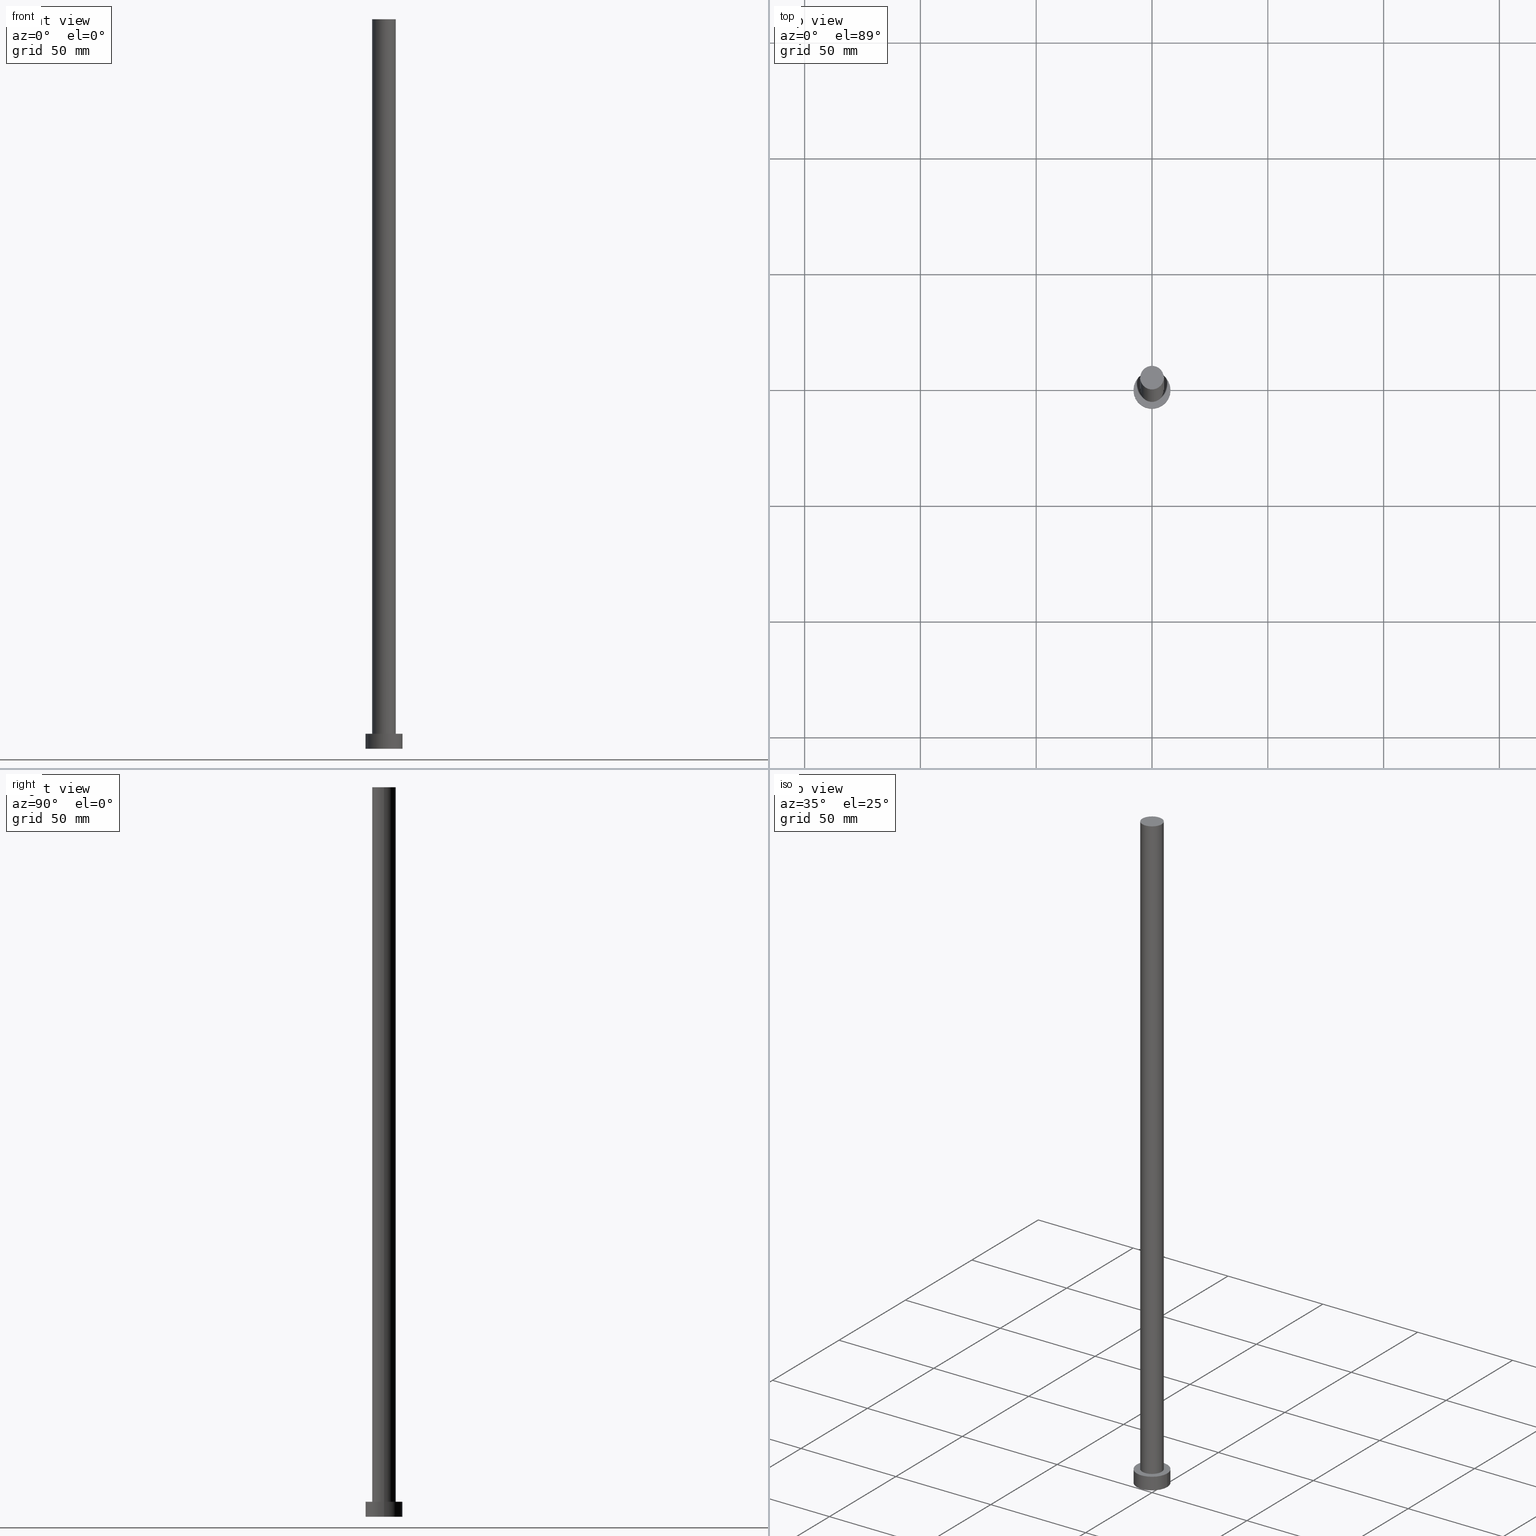
[diagram: canonical four-view strip — front | top / right | iso, engineering-drawing reading convention]
A machine part, canonical four-view strip (front | top / right | iso — engineering-drawing reading convention). The complete STEP part file that produces these views, byte-faithful:
ISO-10303-21;
HEADER;
FILE_DESCRIPTION (( 'STEP AP203' ),
    '1' );
FILE_NAME ('1d34.STEP',
    '2023-02-13T13:06:24',
    ( '' ),
    ( '' ),
    'SwSTEP 2.0',
    'SolidWorks 2019',
    '' );
FILE_SCHEMA (( 'CONFIG_CONTROL_DESIGN' ));
ENDSEC;

DATA;
#1 = EDGE_CURVE ( 'NONE', #63, #212, #165, .T. ) ;
#2 = DIRECTION ( 'NONE',  ( 1.000000000000000000, 0.000000000000000000, 0.000000000000000000 ) ) ;
#3 = AXIS2_PLACEMENT_3D ( 'NONE', #133, #115, #36 ) ;
#4 = APPROVAL_PERSON_ORGANIZATION ( #56, #44, #108 ) ;
#5 = FACE_OUTER_BOUND ( 'NONE', #154, .T. ) ;
#6 =( LENGTH_UNIT ( ) NAMED_UNIT ( * ) SI_UNIT ( .MILLI., .METRE. ) );
#7 =( NAMED_UNIT ( * ) SI_UNIT ( $, .STERADIAN. ) SOLID_ANGLE_UNIT ( ) );
#8 = AXIS2_PLACEMENT_3D ( 'NONE', #11, #74, #71 ) ;
#9 = CARTESIAN_POINT ( 'NONE',  ( -5.100000000000001421, 0.000000000000000000, 6.500000000000000000 ) ) ;
#10 = CALENDAR_DATE ( 2023, 13, 2 ) ;
#11 = CARTESIAN_POINT ( 'NONE',  ( 0.000000000000000000, 0.000000000000000000, 0.000000000000000000 ) ) ;
#12 = AXIS2_PLACEMENT_3D ( 'NONE', #24, #142, #155 ) ;
#13 = CIRCLE ( 'NONE', #110, 8.000000000000000000 ) ;
#14 = ADVANCED_FACE ( 'NONE', ( #151 ), #174, .T. ) ;
#15 = FACE_OUTER_BOUND ( 'NONE', #77, .T. ) ;
#16 = VERTEX_POINT ( 'NONE', #191 ) ;
#17 = ORIENTED_EDGE ( 'NONE', *, *, #240, .F. ) ;
#18 = CYLINDRICAL_SURFACE ( 'NONE', #67, 8.000000000000000000 ) ;
#19 = EDGE_CURVE ( 'NONE', #16, #63, #76, .T. ) ;
#20 = DIRECTION ( 'NONE',  ( -0.000000000000000000, -0.000000000000000000, -1.000000000000000000 ) ) ;
#21 = FACE_OUTER_BOUND ( 'NONE', #129, .T. ) ;
#22 = PRODUCT_DEFINITION_FORMATION_WITH_SPECIFIED_SOURCE ( 'LIBOVOLN�', '', #225, .NOT_KNOWN. ) ;
#23 = DIRECTION ( 'NONE',  ( 1.000000000000000000, 0.000000000000000000, -0.000000000000000000 ) ) ;
#24 = CARTESIAN_POINT ( 'NONE',  ( 0.000000000000000000, 0.000000000000000000, 315.0000000000000000 ) ) ;
#25 = PLANE ( 'NONE',  #202 ) ;
#26 = APPROVAL_STATUS ( 'not_yet_approved' ) ;
#27 = PRODUCT_DEFINITION_SHAPE ( 'NONE', 'NONE',  #148 ) ;
#28 = PERSON_AND_ORGANIZATION ( #83, #235 ) ;
#29 = APPROVAL_DATE_TIME ( #69, #193 ) ;
#30 = LOCAL_TIME ( 14, 6, 24.00000000000000000, #51 ) ;
#31 = ORIENTED_EDGE ( 'NONE', *, *, #197, .F. ) ;
#32 = PERSON_AND_ORGANIZATION ( #83, #235 ) ;
#33 = EDGE_LOOP ( 'NONE', ( #252, #167 ) ) ;
#34 = ORIENTED_EDGE ( 'NONE', *, *, #132, .F. ) ;
#35 = SECURITY_CLASSIFICATION ( '', '', #106 ) ;
#36 = DIRECTION ( 'NONE',  ( 1.000000000000000000, 0.000000000000000000, -0.000000000000000000 ) ) ;
#37 = ORIENTED_EDGE ( 'NONE', *, *, #1, .T. ) ;
#38 = ORIENTED_EDGE ( 'NONE', *, *, #168, .F. ) ;
#39 = CC_DESIGN_PERSON_AND_ORGANIZATION_ASSIGNMENT ( #104, #164, ( #22 ) ) ;
#40 = AXIS2_PLACEMENT_3D ( 'NONE', #46, #236, #178 ) ;
#41 = ORIENTED_EDGE ( 'NONE', *, *, #226, .T. ) ;
#42 = APPLICATION_CONTEXT ( 'configuration controlled 3d designs of mechanical parts and assemblies' ) ;
#43 = DIRECTION ( 'NONE',  ( 0.000000000000000000, 0.000000000000000000, 1.000000000000000000 ) ) ;
#44 = APPROVAL ( #87, 'NEUR�EN�' ) ;
#45 = DIRECTION ( 'NONE',  ( 1.000000000000000000, 0.000000000000000000, 0.000000000000000000 ) ) ;
#46 = CARTESIAN_POINT ( 'NONE',  ( 0.000000000000000000, 0.000000000000000000, 6.500000000000000000 ) ) ;
#47 = MANIFOLD_SOLID_BREP ( 'P�idat vysunut�m3', #222 ) ;
#48 = CARTESIAN_POINT ( 'NONE',  ( 0.000000000000000000, 0.000000000000000000, 315.0000000000000000 ) ) ;
#49 = CYLINDRICAL_SURFACE ( 'NONE', #12, 5.100000000000001421 ) ;
#50 = EDGE_CURVE ( 'NONE', #114, #135, #170, .T. ) ;
#51 = COORDINATED_UNIVERSAL_TIME_OFFSET ( 1, 0, .AHEAD. ) ;
#52 = APPLICATION_CONTEXT ( 'configuration controlled 3d designs of mechanical parts and assemblies' ) ;
#53 = CC_DESIGN_DATE_AND_TIME_ASSIGNMENT ( #223, #203, ( #148 ) ) ;
#54 = APPROVAL_STATUS ( 'not_yet_approved' ) ;
#55 = ORIENTED_EDGE ( 'NONE', *, *, #177, .T. ) ;
#56 = PERSON_AND_ORGANIZATION ( #83, #235 ) ;
#57 = ORIENTED_EDGE ( 'NONE', *, *, #1, .F. ) ;
#58 = EDGE_CURVE ( 'NONE', #114, #113, #62, .T. ) ;
#59 = CARTESIAN_POINT ( 'NONE',  ( 8.000000000000000000, 9.797174393178823685E-16, 0.000000000000000000 ) ) ;
#60 = DIRECTION ( 'NONE',  ( -1.000000000000000000, 0.000000000000000000, 0.000000000000000000 ) ) ;
#61 = ADVANCED_FACE ( 'NONE', ( #172 ), #111, .F. ) ;
#62 = LINE ( 'NONE', #130, #208 ) ;
#63 = VERTEX_POINT ( 'NONE', #59 ) ;
#64 = CARTESIAN_POINT ( 'NONE',  ( -5.100000000000001421, 0.000000000000000000, 315.0000000000000000 ) ) ;
#65 = CC_DESIGN_PERSON_AND_ORGANIZATION_ASSIGNMENT ( #89, #144, ( #22 ) ) ;
#66 = CYLINDRICAL_SURFACE ( 'NONE', #161, 5.100000000000001421 ) ;
#67 = AXIS2_PLACEMENT_3D ( 'NONE', #98, #232, #60 ) ;
#68 = DIRECTION ( 'NONE',  ( 1.000000000000000000, 0.000000000000000000, 0.000000000000000000 ) ) ;
#69 = DATE_AND_TIME ( #10, #70 ) ;
#70 = LOCAL_TIME ( 14, 6, 24.00000000000000000, #209 ) ;
#71 = DIRECTION ( 'NONE',  ( 1.000000000000000000, 0.000000000000000000, 0.000000000000000000 ) ) ;
#72 = CALENDAR_DATE ( 2023, 13, 2 ) ;
#73 = APPROVAL_DATE_TIME ( #205, #163 ) ;
#74 = DIRECTION ( 'NONE',  ( 0.000000000000000000, 0.000000000000000000, 1.000000000000000000 ) ) ;
#75 = AXIS2_PLACEMENT_3D ( 'NONE', #157, #43, #118 ) ;
#76 = LINE ( 'NONE', #195, #249 ) ;
#77 = EDGE_LOOP ( 'NONE', ( #17, #214, #37, #34 ) ) ;
#78 = EDGE_LOOP ( 'NONE', ( #216, #31 ) ) ;
#79 = CIRCLE ( 'NONE', #40, 5.100000000000001421 ) ;
#80 = ORIENTED_EDGE ( 'NONE', *, *, #58, .T. ) ;
#81 = FACE_OUTER_BOUND ( 'NONE', #33, .T. ) ;
#82 = CARTESIAN_POINT ( 'NONE',  ( 0.000000000000000000, 0.000000000000000000, 315.0000000000000000 ) ) ;
#83 = PERSON ( 'NEUR�EN�', 'NEUR�EN�', 'NEUR�EN�', ('NEUR�EN�'), ('NEUR�EN�'), ('NEUR�EN�') ) ;
#84 = DIRECTION ( 'NONE',  ( 1.000000000000000000, 0.000000000000000000, 0.000000000000000000 ) ) ;
#85 = CARTESIAN_POINT ( 'NONE',  ( -5.100000000000001421, 0.000000000000000000, 315.0000000000000000 ) ) ;
#86 = CARTESIAN_POINT ( 'NONE',  ( -8.000000000000000000, 0.000000000000000000, 6.500000000000000000 ) ) ;
#87 = APPROVAL_STATUS ( 'not_yet_approved' ) ;
#88 = CALENDAR_DATE ( 2023, 13, 2 ) ;
#89 = PERSON_AND_ORGANIZATION ( #83, #235 ) ;
#90 = VECTOR ( 'NONE', #198, 1000.000000000000000 ) ;
#91 = DIRECTION ( 'NONE',  ( 1.000000000000000000, 0.000000000000000000, -0.000000000000000000 ) ) ;
#92 = DIRECTION ( 'NONE',  ( 1.000000000000000000, 0.000000000000000000, 0.000000000000000000 ) ) ;
#93 = EDGE_LOOP ( 'NONE', ( #234, #57 ) ) ;
#94 = CC_DESIGN_PERSON_AND_ORGANIZATION_ASSIGNMENT ( #32, #183, ( #148 ) ) ;
#95 = UNCERTAINTY_MEASURE_WITH_UNIT (LENGTH_MEASURE( 1.000000000000000082E-05 ), #6, 'distance_accuracy_value', 'NONE');
#96 = ORIENTED_EDGE ( 'NONE', *, *, #206, .F. ) ;
#97 = CC_DESIGN_SECURITY_CLASSIFICATION ( #35, ( #22 ) ) ;
#98 = CARTESIAN_POINT ( 'NONE',  ( 0.000000000000000000, 0.000000000000000000, 6.500000000000000000 ) ) ;
#99 = CARTESIAN_POINT ( 'NONE',  ( -8.000000000000000000, 0.000000000000000000, 0.000000000000000000 ) ) ;
#100 = AXIS2_PLACEMENT_3D ( 'NONE', #255, #233, #92 ) ;
#101 = ADVANCED_FACE ( 'NONE', ( #15 ), #18, .T. ) ;
#102 = DIRECTION ( 'NONE',  ( -1.000000000000000000, 0.000000000000000000, 0.000000000000000000 ) ) ;
#103 = DIRECTION ( 'NONE',  ( -1.000000000000000000, 0.000000000000000000, 0.000000000000000000 ) ) ;
#104 = PERSON_AND_ORGANIZATION ( #83, #235 ) ;
#105 = CC_DESIGN_PERSON_AND_ORGANIZATION_ASSIGNMENT ( #159, #127, ( #225 ) ) ;
#106 = SECURITY_CLASSIFICATION_LEVEL ( 'unclassified' ) ;
#107 = PERSON_AND_ORGANIZATION_ROLE ( 'classification_officer' ) ;
#108 = APPROVAL_ROLE ( '' ) ;
#109 = ORIENTED_EDGE ( 'NONE', *, *, #168, .T. ) ;
#110 = AXIS2_PLACEMENT_3D ( 'NONE', #156, #238, #45 ) ;
#111 = PLANE ( 'NONE',  #136 ) ;
#112 = ADVANCED_FACE ( 'NONE', ( #134, #81 ), #25, .T. ) ;
#113 = VERTEX_POINT ( 'NONE', #158 ) ;
#114 = VERTEX_POINT ( 'NONE', #218 ) ;
#115 = DIRECTION ( 'NONE',  ( 0.000000000000000000, 0.000000000000000000, 1.000000000000000000 ) ) ;
#116 =( GEOMETRIC_REPRESENTATION_CONTEXT ( 3 ) GLOBAL_UNCERTAINTY_ASSIGNED_CONTEXT ( ( #95 ) ) GLOBAL_UNIT_ASSIGNED_CONTEXT ( ( #6, #122, #7 ) ) REPRESENTATION_CONTEXT ( 'NONE', 'WORKASPACE' ) );
#117 = ORIENTED_EDGE ( 'NONE', *, *, #197, .T. ) ;
#118 = DIRECTION ( 'NONE',  ( 1.000000000000000000, 0.000000000000000000, 0.000000000000000000 ) ) ;
#119 = LINE ( 'NONE', #86, #90 ) ;
#120 = DIRECTION ( 'NONE',  ( 0.000000000000000000, 0.000000000000000000, 1.000000000000000000 ) ) ;
#121 = CC_DESIGN_DATE_AND_TIME_ASSIGNMENT ( #125, #162, ( #35 ) ) ;
#122 =( NAMED_UNIT ( * ) PLANE_ANGLE_UNIT ( ) SI_UNIT ( $, .RADIAN. ) );
#123 = LINE ( 'NONE', #64, #145 ) ;
#124 = CC_DESIGN_APPROVAL ( #44, ( #148 ) ) ;
#125 = DATE_AND_TIME ( #88, #30 ) ;
#126 = CALENDAR_DATE ( 2023, 13, 2 ) ;
#127 = PERSON_AND_ORGANIZATION_ROLE ( 'design_owner' ) ;
#128 = AXIS2_PLACEMENT_3D ( 'NONE', #229, #196, #190 ) ;
#129 = EDGE_LOOP ( 'NONE', ( #186, #80, #117, #96 ) ) ;
#130 = CARTESIAN_POINT ( 'NONE',  ( 5.100000000000001421, 6.245698675651501825E-16, 315.0000000000000000 ) ) ;
#131 = AXIS2_PLACEMENT_3D ( 'NONE', #242, #138, #2 ) ;
#132 = EDGE_CURVE ( 'NONE', #215, #212, #119, .T. ) ;
#133 = CARTESIAN_POINT ( 'NONE',  ( 0.000000000000000000, 0.000000000000000000, 315.0000000000000000 ) ) ;
#134 = FACE_BOUND ( 'NONE', #78, .T. ) ;
#135 = VERTEX_POINT ( 'NONE', #85 ) ;
#136 = AXIS2_PLACEMENT_3D ( 'NONE', #254, #217, #91 ) ;
#137 = ORIENTED_EDGE ( 'NONE', *, *, #19, .F. ) ;
#138 = DIRECTION ( 'NONE',  ( 0.000000000000000000, 0.000000000000000000, 1.000000000000000000 ) ) ;
#139 = CYLINDRICAL_SURFACE ( 'NONE', #188, 8.000000000000000000 ) ;
#140 = DIRECTION ( 'NONE',  ( 0.000000000000000000, 0.000000000000000000, 1.000000000000000000 ) ) ;
#141 = LOCAL_TIME ( 14, 6, 24.00000000000000000, #160 ) ;
#142 = DIRECTION ( 'NONE',  ( -0.000000000000000000, -0.000000000000000000, -1.000000000000000000 ) ) ;
#143 = CIRCLE ( 'NONE', #187, 5.100000000000001421 ) ;
#144 = PERSON_AND_ORGANIZATION_ROLE ( 'creator' ) ;
#145 = VECTOR ( 'NONE', #20, 1000.000000000000000 ) ;
#146 = APPROVAL_DATE_TIME ( #246, #44 ) ;
#147 = COORDINATED_UNIVERSAL_TIME_OFFSET ( 1, 0, .AHEAD. ) ;
#148 = PRODUCT_DEFINITION ( 'NEZN�M�', '', #22, #184 ) ;
#149 = DIRECTION ( 'NONE',  ( -0.000000000000000000, -0.000000000000000000, -1.000000000000000000 ) ) ;
#150 = ADVANCED_FACE ( 'NONE', ( #21 ), #49, .T. ) ;
#151 = FACE_OUTER_BOUND ( 'NONE', #152, .T. ) ;
#152 = EDGE_LOOP ( 'NONE', ( #109, #153 ) ) ;
#153 = ORIENTED_EDGE ( 'NONE', *, *, #50, .T. ) ;
#154 = EDGE_LOOP ( 'NONE', ( #137, #192, #251, #55 ) ) ;
#155 = DIRECTION ( 'NONE',  ( -1.000000000000000000, 0.000000000000000000, 0.000000000000000000 ) ) ;
#156 = CARTESIAN_POINT ( 'NONE',  ( 0.000000000000000000, 0.000000000000000000, 6.500000000000000000 ) ) ;
#157 = CARTESIAN_POINT ( 'NONE',  ( 0.000000000000000000, 0.000000000000000000, 6.500000000000000000 ) ) ;
#158 = CARTESIAN_POINT ( 'NONE',  ( 5.100000000000001421, 6.245698675651501825E-16, 6.500000000000000000 ) ) ;
#159 = PERSON_AND_ORGANIZATION ( #83, #235 ) ;
#160 = COORDINATED_UNIVERSAL_TIME_OFFSET ( 1, 0, .AHEAD. ) ;
#161 = AXIS2_PLACEMENT_3D ( 'NONE', #48, #219, #103 ) ;
#162 = DATE_TIME_ROLE ( 'classification_date' ) ;
#163 = APPROVAL ( #26, 'NEUR�EN�' ) ;
#164 = PERSON_AND_ORGANIZATION_ROLE ( 'design_supplier' ) ;
#165 = CIRCLE ( 'NONE', #100, 8.000000000000000000 ) ;
#166 = VERTEX_POINT ( 'NONE', #9 ) ;
#167 = ORIENTED_EDGE ( 'NONE', *, *, #240, .T. ) ;
#168 = EDGE_CURVE ( 'NONE', #135, #114, #143, .T. ) ;
#169 = EDGE_LOOP ( 'NONE', ( #230, #38, #213, #41 ) ) ;
#170 = CIRCLE ( 'NONE', #128, 5.100000000000001421 ) ;
#171 = CC_DESIGN_APPROVAL ( #193, ( #35 ) ) ;
#172 = FACE_OUTER_BOUND ( 'NONE', #93, .T. ) ;
#173 = PRODUCT_RELATED_PRODUCT_CATEGORY ( 'detail', '', ( #225 ) ) ;
#174 = PLANE ( 'NONE',  #3 ) ;
#175 = CARTESIAN_POINT ( 'NONE',  ( -8.000000000000000000, 0.000000000000000000, 6.500000000000000000 ) ) ;
#176 = DIRECTION ( 'NONE',  ( 0.000000000000000000, 0.000000000000000000, 1.000000000000000000 ) ) ;
#177 = EDGE_CURVE ( 'NONE', #212, #63, #245, .T. ) ;
#178 = DIRECTION ( 'NONE',  ( 1.000000000000000000, 0.000000000000000000, 0.000000000000000000 ) ) ;
#179 = ADVANCED_FACE ( 'NONE', ( #220 ), #66, .T. ) ;
#180 = PERSON_AND_ORGANIZATION ( #83, #235 ) ;
#181 = MECHANICAL_CONTEXT ( 'NONE', #42, 'mechanical' ) ;
#182 = ADVANCED_BREP_SHAPE_REPRESENTATION ( '1d34', ( #47, #8 ), #116 ) ;
#183 = PERSON_AND_ORGANIZATION_ROLE ( 'creator' ) ;
#184 = DESIGN_CONTEXT ( 'detailed design', #52, 'design' ) ;
#185 = APPROVAL_PERSON_ORGANIZATION ( #180, #193, #250 ) ;
#186 = ORIENTED_EDGE ( 'NONE', *, *, #50, .F. ) ;
#187 = AXIS2_PLACEMENT_3D ( 'NONE', #82, #140, #68 ) ;
#188 = AXIS2_PLACEMENT_3D ( 'NONE', #199, #200, #102 ) ;
#189 = ADVANCED_FACE ( 'NONE', ( #5 ), #139, .T. ) ;
#190 = DIRECTION ( 'NONE',  ( 1.000000000000000000, 0.000000000000000000, 0.000000000000000000 ) ) ;
#191 = CARTESIAN_POINT ( 'NONE',  ( 8.000000000000000000, 9.797174393178823685E-16, 6.500000000000000000 ) ) ;
#192 = ORIENTED_EDGE ( 'NONE', *, *, #244, .F. ) ;
#193 = APPROVAL ( #54, 'NEUR�EN�' ) ;
#194 = CC_DESIGN_APPROVAL ( #163, ( #22 ) ) ;
#195 = CARTESIAN_POINT ( 'NONE',  ( 8.000000000000000000, 9.797174393178823685E-16, 6.500000000000000000 ) ) ;
#196 = DIRECTION ( 'NONE',  ( 0.000000000000000000, 0.000000000000000000, 1.000000000000000000 ) ) ;
#197 = EDGE_CURVE ( 'NONE', #113, #166, #79, .T. ) ;
#198 = DIRECTION ( 'NONE',  ( -0.000000000000000000, -0.000000000000000000, -1.000000000000000000 ) ) ;
#199 = CARTESIAN_POINT ( 'NONE',  ( 0.000000000000000000, 0.000000000000000000, 6.500000000000000000 ) ) ;
#200 = DIRECTION ( 'NONE',  ( -0.000000000000000000, -0.000000000000000000, -1.000000000000000000 ) ) ;
#201 = APPLICATION_PROTOCOL_DEFINITION ( 'international standard', 'config_control_design', 1994, #42 ) ;
#202 = AXIS2_PLACEMENT_3D ( 'NONE', #221, #120, #23 ) ;
#203 = DATE_TIME_ROLE ( 'creation_date' ) ;
#204 = CIRCLE ( 'NONE', #75, 5.100000000000001421 ) ;
#205 = DATE_AND_TIME ( #72, #231 ) ;
#206 = EDGE_CURVE ( 'NONE', #135, #166, #123, .T. ) ;
#207 = APPROVAL_ROLE ( '' ) ;
#208 = VECTOR ( 'NONE', #253, 1000.000000000000000 ) ;
#209 = COORDINATED_UNIVERSAL_TIME_OFFSET ( 1, 0, .AHEAD. ) ;
#210 = APPROVAL_PERSON_ORGANIZATION ( #228, #163, #207 ) ;
#211 = CALENDAR_DATE ( 2023, 13, 2 ) ;
#212 = VERTEX_POINT ( 'NONE', #99 ) ;
#213 = ORIENTED_EDGE ( 'NONE', *, *, #206, .T. ) ;
#214 = ORIENTED_EDGE ( 'NONE', *, *, #19, .T. ) ;
#215 = VERTEX_POINT ( 'NONE', #175 ) ;
#216 = ORIENTED_EDGE ( 'NONE', *, *, #226, .F. ) ;
#217 = DIRECTION ( 'NONE',  ( 0.000000000000000000, 0.000000000000000000, 1.000000000000000000 ) ) ;
#218 = CARTESIAN_POINT ( 'NONE',  ( 5.100000000000001421, 6.245698675651501825E-16, 315.0000000000000000 ) ) ;
#219 = DIRECTION ( 'NONE',  ( -0.000000000000000000, -0.000000000000000000, -1.000000000000000000 ) ) ;
#220 = FACE_OUTER_BOUND ( 'NONE', #169, .T. ) ;
#221 = CARTESIAN_POINT ( 'NONE',  ( 0.000000000000000000, 0.000000000000000000, 6.500000000000000000 ) ) ;
#222 = CLOSED_SHELL ( 'NONE', ( #150, #101, #189, #112, #61, #179, #14 ) ) ;
#223 = DATE_AND_TIME ( #211, #241 ) ;
#224 = AXIS2_PLACEMENT_3D ( 'NONE', #239, #176, #84 ) ;
#225 = PRODUCT ( '1d34', '1d34', '', ( #181 ) ) ;
#226 = EDGE_CURVE ( 'NONE', #166, #113, #204, .T. ) ;
#227 = COORDINATED_UNIVERSAL_TIME_OFFSET ( 1, 0, .AHEAD. ) ;
#228 = PERSON_AND_ORGANIZATION ( #83, #235 ) ;
#229 = CARTESIAN_POINT ( 'NONE',  ( 0.000000000000000000, 0.000000000000000000, 315.0000000000000000 ) ) ;
#230 = ORIENTED_EDGE ( 'NONE', *, *, #58, .F. ) ;
#231 = LOCAL_TIME ( 14, 6, 24.00000000000000000, #147 ) ;
#232 = DIRECTION ( 'NONE',  ( -0.000000000000000000, -0.000000000000000000, -1.000000000000000000 ) ) ;
#233 = DIRECTION ( 'NONE',  ( 0.000000000000000000, 0.000000000000000000, 1.000000000000000000 ) ) ;
#234 = ORIENTED_EDGE ( 'NONE', *, *, #177, .F. ) ;
#235 = ORGANIZATION ( 'NEUR�EN�', 'NEUR�EN�', '' ) ;
#236 = DIRECTION ( 'NONE',  ( 0.000000000000000000, 0.000000000000000000, 1.000000000000000000 ) ) ;
#237 = CC_DESIGN_PERSON_AND_ORGANIZATION_ASSIGNMENT ( #28, #107, ( #35 ) ) ;
#238 = DIRECTION ( 'NONE',  ( 0.000000000000000000, 0.000000000000000000, 1.000000000000000000 ) ) ;
#239 = CARTESIAN_POINT ( 'NONE',  ( 0.000000000000000000, 0.000000000000000000, 6.500000000000000000 ) ) ;
#240 = EDGE_CURVE ( 'NONE', #16, #215, #247, .T. ) ;
#241 = LOCAL_TIME ( 14, 6, 24.00000000000000000, #227 ) ;
#242 = CARTESIAN_POINT ( 'NONE',  ( 0.000000000000000000, 0.000000000000000000, 0.000000000000000000 ) ) ;
#243 = SHAPE_DEFINITION_REPRESENTATION ( #27, #182 ) ;
#244 = EDGE_CURVE ( 'NONE', #215, #16, #13, .T. ) ;
#245 = CIRCLE ( 'NONE', #131, 8.000000000000000000 ) ;
#246 = DATE_AND_TIME ( #126, #141 ) ;
#247 = CIRCLE ( 'NONE', #224, 8.000000000000000000 ) ;
#248 = APPLICATION_PROTOCOL_DEFINITION ( 'international standard', 'config_control_design', 1994, #52 ) ;
#249 = VECTOR ( 'NONE', #149, 1000.000000000000000 ) ;
#250 = APPROVAL_ROLE ( '' ) ;
#251 = ORIENTED_EDGE ( 'NONE', *, *, #132, .T. ) ;
#252 = ORIENTED_EDGE ( 'NONE', *, *, #244, .T. ) ;
#253 = DIRECTION ( 'NONE',  ( -0.000000000000000000, -0.000000000000000000, -1.000000000000000000 ) ) ;
#254 = CARTESIAN_POINT ( 'NONE',  ( 0.000000000000000000, 0.000000000000000000, 0.000000000000000000 ) ) ;
#255 = CARTESIAN_POINT ( 'NONE',  ( 0.000000000000000000, 0.000000000000000000, 0.000000000000000000 ) ) ;
ENDSEC;
END-ISO-10303-21;
